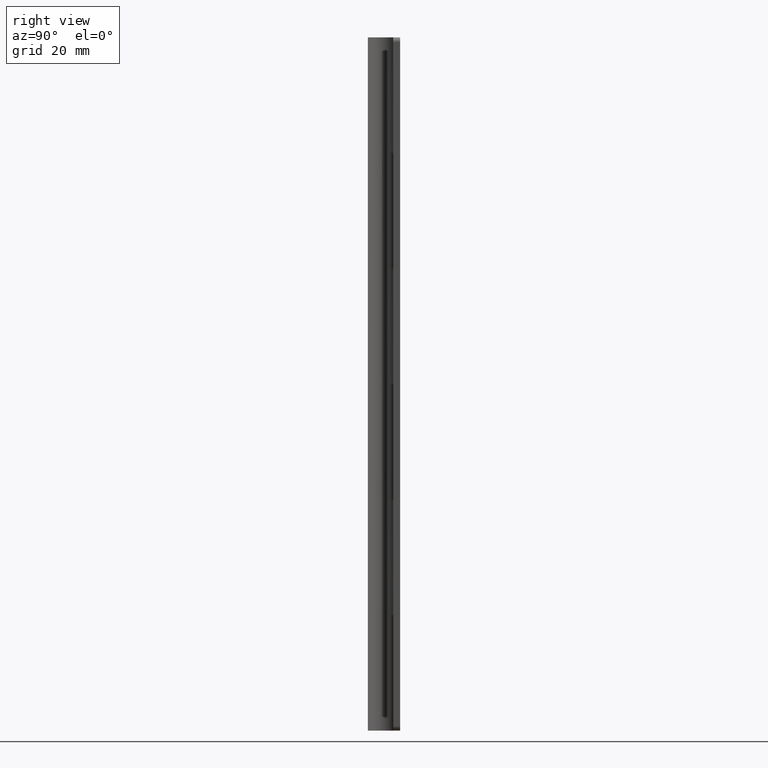
[diagram: clean part render]
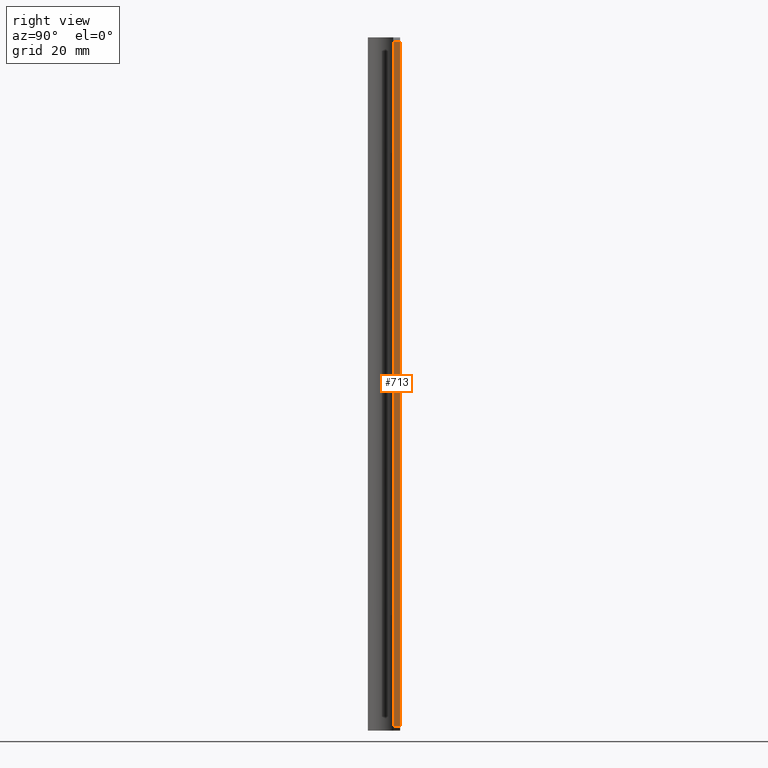
[diagram: same view with one face highlighted and labeled with its STEP entity id]
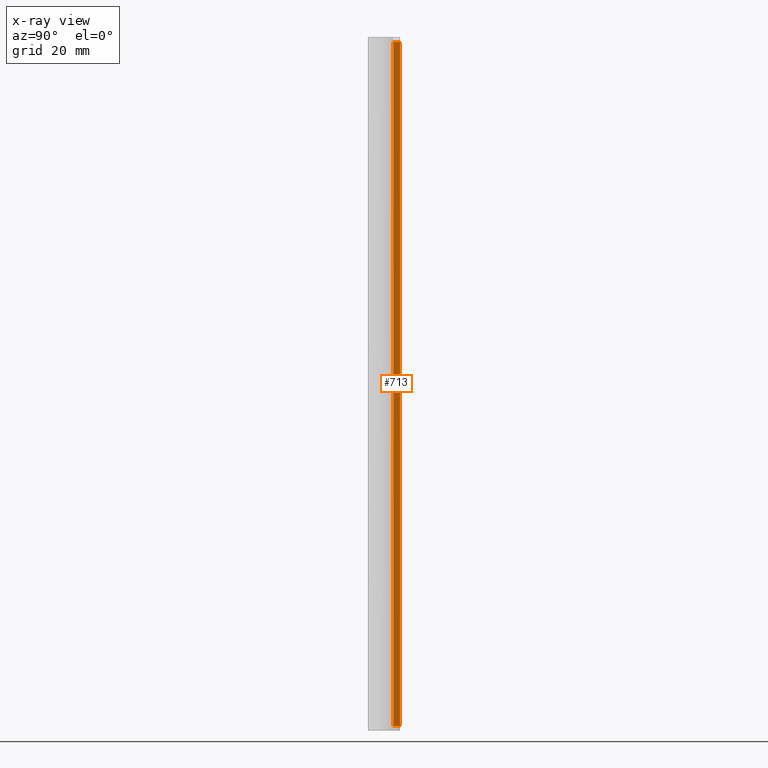
[diagram: x-ray of the same camera — body ghosted, the highlighted face saturated]
A machine part, right view. The second image highlights one B-rep face of the part: STEP entity #713.
The next image is the same camera in x-ray: the body ghosted, the highlighted face saturated — about 0% of this face is hidden behind the body in this view.
In plain terms, the highlighted face is a freeform B-spline surface patch.
Its self-contained STEP definition (entity closure, byte-faithful):
#58=CARTESIAN_POINT('',(25.0,2.0,149.000007999999810));
#59=VERTEX_POINT('',#58);
#75=CARTESIAN_POINT('',(25.0,3.500000000000000,149.000007999999810));
#76=VERTEX_POINT('',#75);
#77=CARTESIAN_POINT('',(25.0,3.500000000000000,149.000007999999810));
#78=CARTESIAN_POINT('',(25.0,2.0,149.000007999999810));
#79=QUASI_UNIFORM_CURVE('',1,(#77,#78),.UNSPECIFIED.,.F.,.U.);
#80=EDGE_CURVE('',#76,#59,#79,.T.);
#121=CARTESIAN_POINT('',(25.0,2.0,1.0));
#122=VERTEX_POINT('',#121);
#143=CARTESIAN_POINT('',(25.0,3.500000000000000,1.0));
#144=VERTEX_POINT('',#143);
#158=CARTESIAN_POINT('',(25.0,2.0,1.0));
#159=CARTESIAN_POINT('',(25.0,3.500000000000000,1.0));
#160=QUASI_UNIFORM_CURVE('',1,(#158,#159),.UNSPECIFIED.,.F.,.U.);
#161=EDGE_CURVE('',#122,#144,#160,.T.);
#694=CARTESIAN_POINT('',(25.0,1.925075002907291,-6.392600112747258));
#695=CARTESIAN_POINT('',(25.0,1.925075002907291,156.392612082416600));
#696=CARTESIAN_POINT('',(25.0,3.574925037325845,-6.392600112747257));
#697=CARTESIAN_POINT('',(25.0,3.574925037325845,156.392612082416600));
#698=B_SPLINE_SURFACE_WITH_KNOTS('',1,1,((#694,#696),(#695,#697)),.UNSPECIFIED.,.F.,.F.,.U.,(2,2),(2,2),(0.0,162.785212195163890),(0.041708334948495,0.958291687403247),.UNSPECIFIED.);
#699=CARTESIAN_POINT('',(25.0,2.0,149.000007999999810));
#700=CARTESIAN_POINT('',(25.0,2.0,1.0));
#701=QUASI_UNIFORM_CURVE('',1,(#699,#700),.UNSPECIFIED.,.F.,.U.);
#702=EDGE_CURVE('',#59,#122,#701,.T.);
#703=ORIENTED_EDGE('',*,*,#702,.T.);
#704=ORIENTED_EDGE('',*,*,#161,.T.);
#705=CARTESIAN_POINT('',(25.0,3.500000000000000,149.000007999999810));
#706=CARTESIAN_POINT('',(25.0,3.500000000000000,1.0));
#707=QUASI_UNIFORM_CURVE('',1,(#705,#706),.UNSPECIFIED.,.F.,.U.);
#708=EDGE_CURVE('',#76,#144,#707,.T.);
#709=ORIENTED_EDGE('',*,*,#708,.F.);
#710=ORIENTED_EDGE('',*,*,#80,.T.);
#711=EDGE_LOOP('',(#703,#704,#709,#710));
#712=FACE_OUTER_BOUND('',#711,.T.);
#713=ADVANCED_FACE('',(#712),#698,.F.);